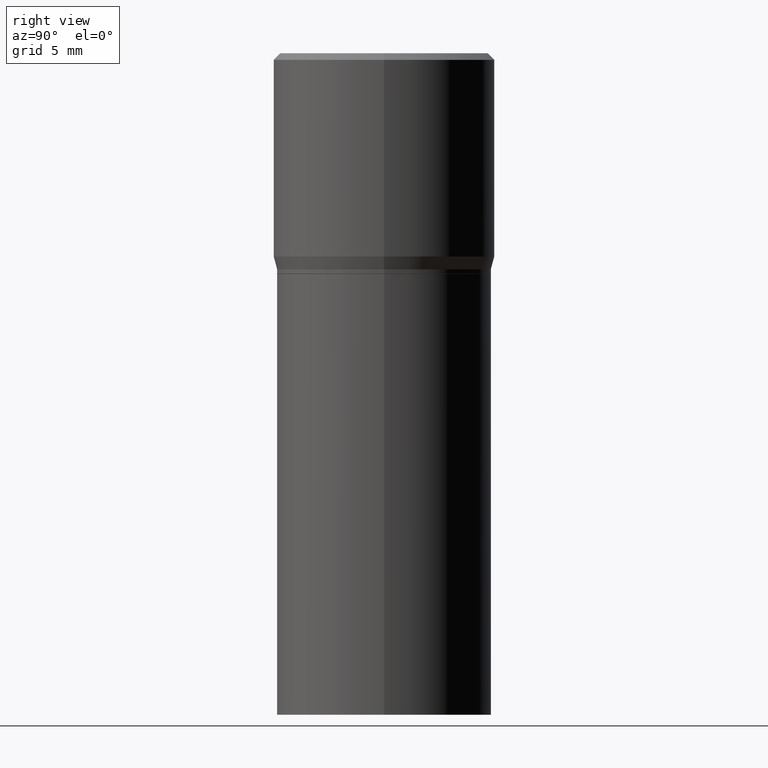
[diagram: clean part render]
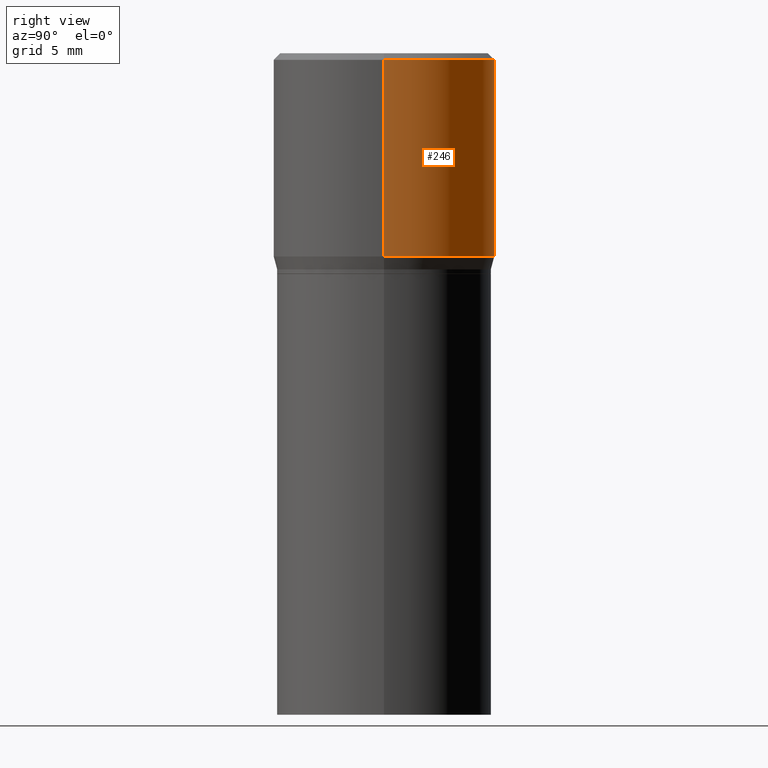
[diagram: same view with one face highlighted and labeled with its STEP entity id]
A machine part, right view. The second image highlights one B-rep face of the part: STEP entity #246.
In plain terms, the highlighted cylindrical surface (partial cylindrical patch) has radius 6.35 mm, axis along (-0, 0, 1).
Its self-contained STEP definition (entity closure, byte-faithful):
#11 = CARTESIAN_POINT ( 'NONE',  ( 0.2500000000000000000, -1.745740669421566678E-15, 1.219044193948983948E-29 ) ) ;
#16 = ORIENTED_EDGE ( 'NONE', *, *, #229, .T. ) ;
#19 = DIRECTION ( 'NONE',  ( -2.445468806185136597E-29, 3.491481338843145583E-15, 1.000000000000000000 ) ) ;
#26 = CARTESIAN_POINT ( 'NONE',  ( 0.2500000000000000000, -3.354929516602825687E-15, -0.4608900037009626693 ) ) ;
#68 = CYLINDRICAL_SURFACE ( 'NONE', #70, 0.2500000000000000000 ) ;
#70 = AXIS2_PLACEMENT_3D ( 'NONE', #199, #19, #100 ) ;
#74 = VECTOR ( 'NONE', #371, 39.37007874015748143 ) ;
#93 = ORIENTED_EDGE ( 'NONE', *, *, #454, .F. ) ;
#100 = DIRECTION ( 'NONE',  ( 1.000000000000000000, -6.982962677686266711E-15, 4.876176775795935793E-29 ) ) ;
#105 = EDGE_LOOP ( 'NONE', ( #384, #16, #277, #93 ) ) ;
#115 = CARTESIAN_POINT ( 'NONE',  ( -0.2500000000000000000, 1.671679922189909619E-16, -0.4608900037009626693 ) ) ;
#120 = CIRCLE ( 'NONE', #209, 0.2500000000000000000 ) ;
#138 = CARTESIAN_POINT ( 'NONE',  ( -0.2500000000000000000, 9.455763057682970257E-16, -0.01499999999999999944 ) ) ;
#155 = LINE ( 'NONE', #11, #74 ) ;
#168 = VERTEX_POINT ( 'NONE', #115 ) ;
#169 = DIRECTION ( 'NONE',  ( -2.445468806185136877E-29, 3.491481338843145188E-15, 1.000000000000000000 ) ) ;
#187 = EDGE_CURVE ( 'NONE', #307, #168, #418, .T. ) ;
#199 = CARTESIAN_POINT ( 'NONE',  ( 0.000000000000000000, 0.000000000000000000, 0.000000000000000000 ) ) ;
#201 = VECTOR ( 'NONE', #169, 39.37007874015748143 ) ;
#209 = AXIS2_PLACEMENT_3D ( 'NONE', #293, #443, #301 ) ;
#213 = EDGE_CURVE ( 'NONE', #253, #302, #120, .T. ) ;
#229 = EDGE_CURVE ( 'NONE', #168, #302, #343, .T. ) ;
#246 = ADVANCED_FACE ( 'NONE', ( #458 ), #68, .T. ) ;
#253 = VERTEX_POINT ( 'NONE', #278 ) ;
#277 = ORIENTED_EDGE ( 'NONE', *, *, #213, .F. ) ;
#278 = CARTESIAN_POINT ( 'NONE',  ( 0.2500000000000000000, -1.798112889504214151E-15, -0.01499999999999999944 ) ) ;
#293 = CARTESIAN_POINT ( 'NONE',  ( 3.668203209277705088E-31, -5.237222008264718399E-17, -0.01499999999999999944 ) ) ;
#301 = DIRECTION ( 'NONE',  ( 1.000000000000000000, -6.982962677686266711E-15, 0.000000000000000000 ) ) ;
#302 = VERTEX_POINT ( 'NONE', #138 ) ;
#307 = VERTEX_POINT ( 'NONE', #26 ) ;
#339 = CARTESIAN_POINT ( 'NONE',  ( 1.127092127133256402E-29, -1.609188847181259404E-15, -0.4608900037009626693 ) ) ;
#343 = LINE ( 'NONE', #376, #201 ) ;
#351 = AXIS2_PLACEMENT_3D ( 'NONE', #339, #432, #369 ) ;
#369 = DIRECTION ( 'NONE',  ( 1.000000000000000000, -6.982962677686266711E-15, 0.000000000000000000 ) ) ;
#371 = DIRECTION ( 'NONE',  ( -2.445468806185136877E-29, 3.491481338843145188E-15, 1.000000000000000000 ) ) ;
#376 = CARTESIAN_POINT ( 'NONE',  ( -0.2500000000000000000, 1.776356839400250465E-15, -1.229733772563726445E-29 ) ) ;
#384 = ORIENTED_EDGE ( 'NONE', *, *, #187, .T. ) ;
#418 = CIRCLE ( 'NONE', #351, 0.2500000000000000000 ) ;
#432 = DIRECTION ( 'NONE',  ( -2.445468806185136597E-29, 3.491481338843145583E-15, 1.000000000000000000 ) ) ;
#443 = DIRECTION ( 'NONE',  ( -2.445468806185136597E-29, 3.491481338843145583E-15, 1.000000000000000000 ) ) ;
#454 = EDGE_CURVE ( 'NONE', #307, #253, #155, .T. ) ;
#458 = FACE_OUTER_BOUND ( 'NONE', #105, .T. ) ;